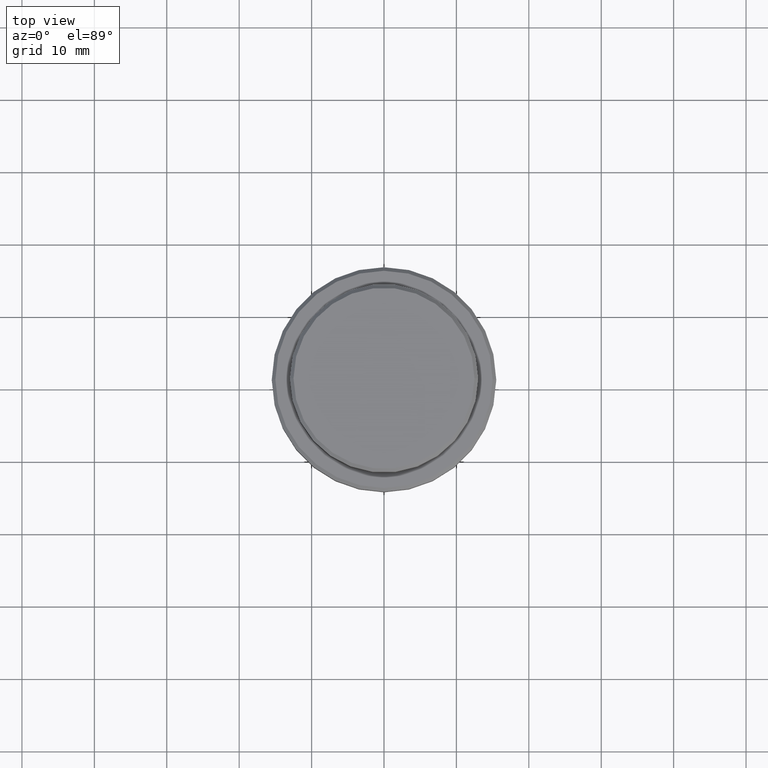
[diagram: clean part render]
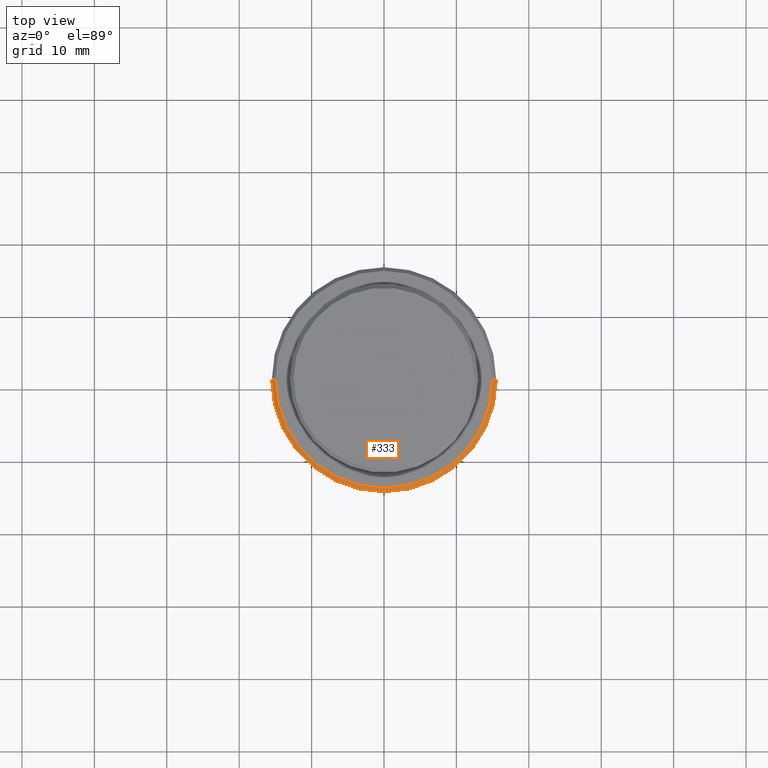
[diagram: same view with one face highlighted and labeled with its STEP entity id]
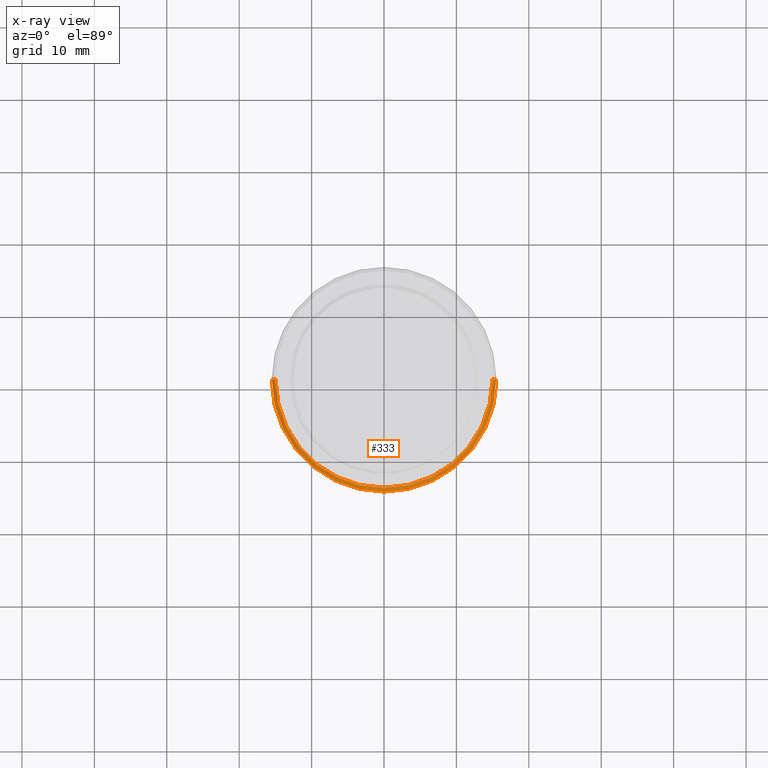
[diagram: x-ray of the same camera — body ghosted, the highlighted face saturated]
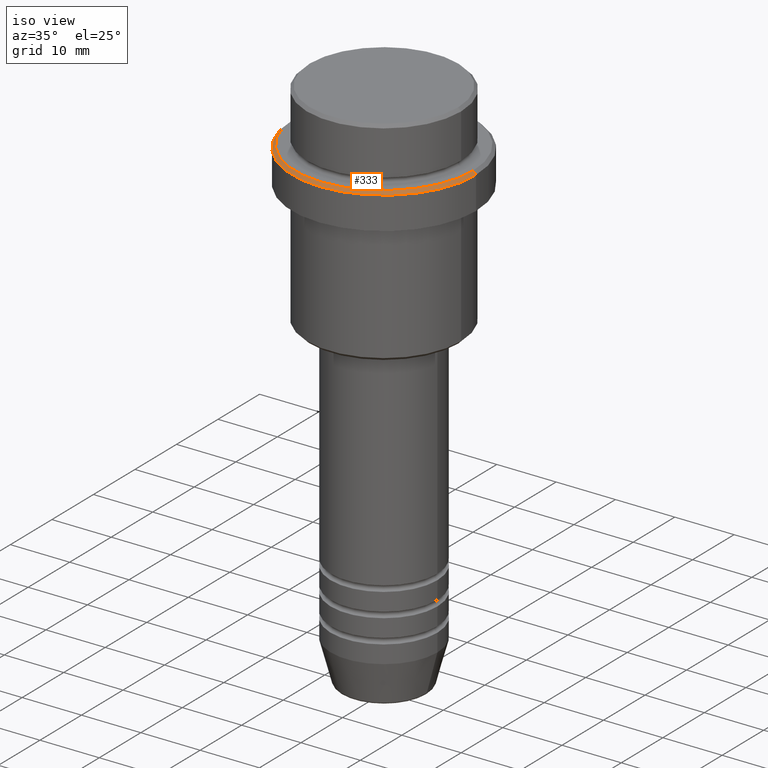
[diagram: same view with one face highlighted and labeled with its STEP entity id]
A machine part, top view. The second image highlights one B-rep face of the part: STEP entity #333.
The next image is the same camera in x-ray: the body ghosted, the highlighted face saturated — about 0% of this face is hidden behind the body in this view.
A second angle (iso view) of the same face is appended — the face is thin or edge-on in the first view.
In plain terms, the highlighted conical surface has half-angle 45 deg.
Its self-contained STEP definition (entity closure, byte-faithful):
#85 = CARTESIAN_POINT ( 'NONE',  ( -15.00000000000000000, 0.000000000000000000, -8.999999999999998224 ) ) ;
#86 = ORIENTED_EDGE ( 'NONE', *, *, #1221, .F. ) ;
#175 = CARTESIAN_POINT ( 'NONE',  ( 15.00000000000000000, 1.836970198721029589E-15, -8.999999999999998224 ) ) ;
#180 = LINE ( 'NONE', #175, #1268 ) ;
#187 = DIRECTION ( 'NONE',  ( 1.000000000000000000, 0.000000000000000000, 0.000000000000000000 ) ) ;
#223 = VERTEX_POINT ( 'NONE', #270 ) ;
#227 = AXIS2_PLACEMENT_3D ( 'NONE', #869, #540, #1184 ) ;
#270 = CARTESIAN_POINT ( 'NONE',  ( 15.00000000000000000, 1.867586368699713376E-15, -8.999999999999998224 ) ) ;
#282 = FACE_OUTER_BOUND ( 'NONE', #760, .T. ) ;
#320 = CIRCLE ( 'NONE', #227, 15.50000000000000000 ) ;
#333 = ADVANCED_FACE ( 'NONE', ( #282 ), #1034, .T. ) ;
#450 = EDGE_CURVE ( 'NONE', #1267, #723, #320, .T. ) ;
#494 = DIRECTION ( 'NONE',  ( 0.000000000000000000, 0.000000000000000000, -1.000000000000000000 ) ) ;
#537 = ORIENTED_EDGE ( 'NONE', *, *, #730, .F. ) ;
#540 = DIRECTION ( 'NONE',  ( 0.000000000000000000, 0.000000000000000000, -1.000000000000000000 ) ) ;
#576 = CIRCLE ( 'NONE', #1211, 15.00000000000000000 ) ;
#638 = VECTOR ( 'NONE', #1314, 1000.000000000000000 ) ;
#715 = CARTESIAN_POINT ( 'NONE',  ( 0.000000000000000000, 0.000000000000000000, -8.999999999999998224 ) ) ;
#723 = VERTEX_POINT ( 'NONE', #936 ) ;
#730 = EDGE_CURVE ( 'NONE', #223, #1267, #180, .T. ) ;
#760 = EDGE_LOOP ( 'NONE', ( #537, #86, #1227, #1342 ) ) ;
#771 = AXIS2_PLACEMENT_3D ( 'NONE', #715, #494, #947 ) ;
#829 = DIRECTION ( 'NONE',  ( -0.000000000000000000, -0.000000000000000000, 1.000000000000000000 ) ) ;
#843 = LINE ( 'NONE', #1293, #638 ) ;
#869 = CARTESIAN_POINT ( 'NONE',  ( 0.000000000000000000, 0.000000000000000000, -9.499999999999996447 ) ) ;
#879 = EDGE_CURVE ( 'NONE', #908, #723, #843, .T. ) ;
#908 = VERTEX_POINT ( 'NONE', #85 ) ;
#931 = DIRECTION ( 'NONE',  ( 0.7071067811865487940, 8.659560562354950115E-17, -0.7071067811865463515 ) ) ;
#936 = CARTESIAN_POINT ( 'NONE',  ( -15.50000000000000000, 1.898202538678397557E-15, -9.499999999999996447 ) ) ;
#947 = DIRECTION ( 'NONE',  ( -1.000000000000000000, 0.000000000000000000, 0.000000000000000000 ) ) ;
#1034 = CONICAL_SURFACE ( 'NONE', #771, 15.00000000000000000, 0.7853981633974500554 ) ;
#1109 = CARTESIAN_POINT ( 'NONE',  ( 15.50000000000000000, 0.000000000000000000, -9.499999999999996447 ) ) ;
#1167 = CARTESIAN_POINT ( 'NONE',  ( 0.000000000000000000, 0.000000000000000000, -8.999999999999998224 ) ) ;
#1184 = DIRECTION ( 'NONE',  ( 1.000000000000000000, 0.000000000000000000, 0.000000000000000000 ) ) ;
#1211 = AXIS2_PLACEMENT_3D ( 'NONE', #1167, #829, #187 ) ;
#1221 = EDGE_CURVE ( 'NONE', #908, #223, #576, .T. ) ;
#1227 = ORIENTED_EDGE ( 'NONE', *, *, #879, .T. ) ;
#1267 = VERTEX_POINT ( 'NONE', #1109 ) ;
#1268 = VECTOR ( 'NONE', #931, 1000.000000000000000 ) ;
#1293 = CARTESIAN_POINT ( 'NONE',  ( -15.00000000000000000, 0.000000000000000000, -8.999999999999998224 ) ) ;
#1314 = DIRECTION ( 'NONE',  ( -0.7071067811865487940, 0.000000000000000000, -0.7071067811865463515 ) ) ;
#1342 = ORIENTED_EDGE ( 'NONE', *, *, #450, .F. ) ;